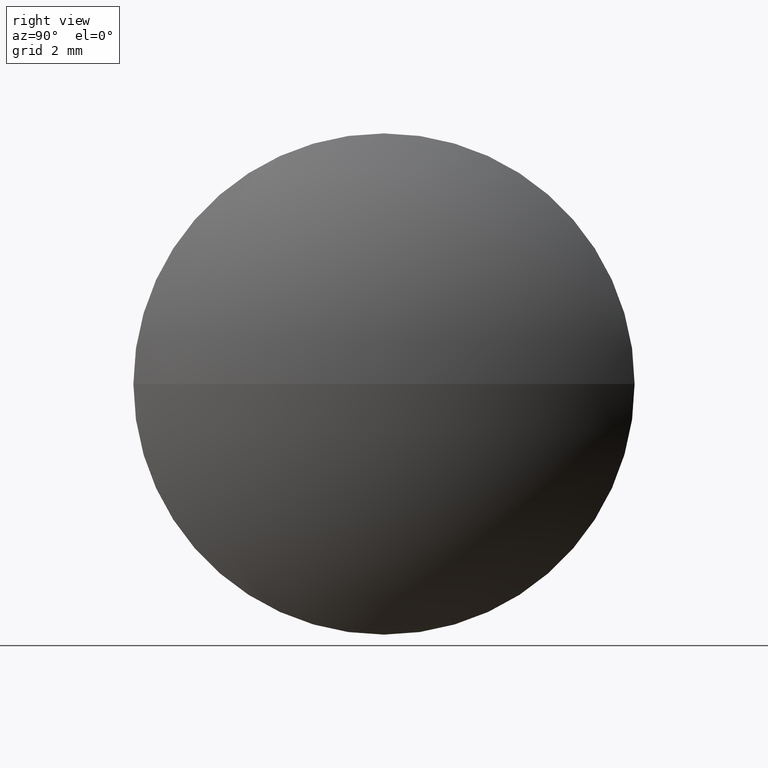
[diagram: clean part render]
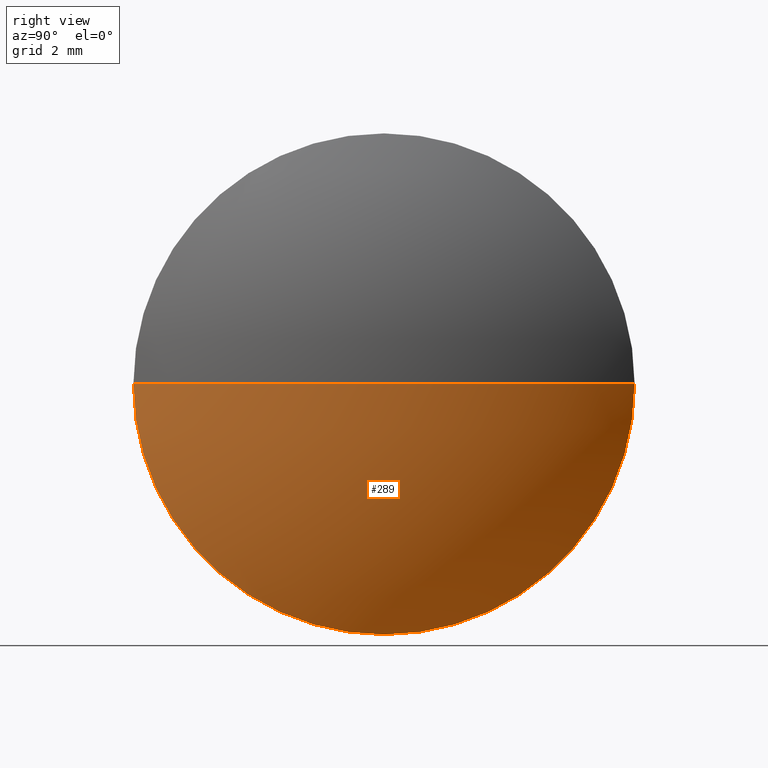
[diagram: same view with one face highlighted and labeled with its STEP entity id]
A machine part, right view. The second image highlights one B-rep face of the part: STEP entity #289.
In plain terms, the highlighted spherical surface has radius 12.9187 mm.
Its self-contained STEP definition (entity closure, byte-faithful):
#20 = EDGE_CURVE ( 'NONE', #120, #103, #58, .T. ) ;
#31 = CARTESIAN_POINT ( 'NONE',  ( 51.35798844960340400, 28.71030296644745400, 0.0000000000000000000 ) ) ;
#35 = CARTESIAN_POINT ( 'NONE',  ( 40.83923844960349900, 28.71030296644745400, 0.0000000000000000000 ) ) ;
#42 = CARTESIAN_POINT ( 'NONE',  ( 40.83923844960349900, 28.71030296644745400, 0.0000000000000000000 ) ) ;
#54 = CIRCLE ( 'NONE', #72, 12.91874999999988200 ) ;
#58 = CIRCLE ( 'NONE', #149, 12.91874999999988600 ) ;
#72 = AXIS2_PLACEMENT_3D ( 'NONE', #35, #155, #284 ) ;
#82 = EDGE_CURVE ( 'NONE', #120, #300, #54, .T. ) ;
#103 = VERTEX_POINT ( 'NONE', #124 ) ;
#107 = EDGE_CURVE ( 'NONE', #300, #183, #197, .T. ) ;
#118 = CARTESIAN_POINT ( 'NONE',  ( 40.83923844960349900, 28.71030296644745400, 0.0000000000000000000 ) ) ;
#120 = VERTEX_POINT ( 'NONE', #327 ) ;
#121 = DIRECTION ( 'NONE',  ( 0.0000000000000000000, 1.224646799147353200E-016, -1.000000000000000000 ) ) ;
#122 = DIRECTION ( 'NONE',  ( 0.0000000000000000000, 1.000000000000000000, 1.224646799147352700E-016 ) ) ;
#124 = CARTESIAN_POINT ( 'NONE',  ( 51.35798844960340400, 21.21030296644752200, -9.184850993605063100E-016 ) ) ;
#126 = DIRECTION ( 'NONE',  ( -1.000000000000000000, -0.0000000000000000000, -0.0000000000000000000 ) ) ;
#135 = AXIS2_PLACEMENT_3D ( 'NONE', #224, #126, #278 ) ;
#147 = ORIENTED_EDGE ( 'NONE', *, *, #107, .F. ) ;
#149 = AXIS2_PLACEMENT_3D ( 'NONE', #118, #121, #122 ) ;
#155 = DIRECTION ( 'NONE',  ( -0.0000000000000000000, 0.0000000000000000000, 1.000000000000000000 ) ) ;
#161 = DIRECTION ( 'NONE',  ( -0.0000000000000000000, 0.0000000000000000000, -1.000000000000000000 ) ) ;
#175 = CARTESIAN_POINT ( 'NONE',  ( 51.35798844960340400, 28.71030296644745400, -7.499999999999927200 ) ) ;
#183 = VERTEX_POINT ( 'NONE', #175 ) ;
#186 = EDGE_CURVE ( 'NONE', #183, #103, #260, .T. ) ;
#197 = CIRCLE ( 'NONE', #135, 7.499999999999927200 ) ;
#217 = EDGE_LOOP ( 'NONE', ( #326, #221, #269, #147 ) ) ;
#221 = ORIENTED_EDGE ( 'NONE', *, *, #20, .T. ) ;
#224 = CARTESIAN_POINT ( 'NONE',  ( 51.35798844960340400, 28.71030296644745400, 0.0000000000000000000 ) ) ;
#228 = DIRECTION ( 'NONE',  ( 0.0000000000000000000, 1.000000000000000000, 0.0000000000000000000 ) ) ;
#243 = AXIS2_PLACEMENT_3D ( 'NONE', #42, #161, #228 ) ;
#251 = DIRECTION ( 'NONE',  ( 0.0000000000000000000, 0.0000000000000000000, 1.000000000000000000 ) ) ;
#252 = FACE_OUTER_BOUND ( 'NONE', #217, .T. ) ;
#260 = CIRCLE ( 'NONE', #282, 7.499999999999927200 ) ;
#269 = ORIENTED_EDGE ( 'NONE', *, *, #186, .F. ) ;
#278 = DIRECTION ( 'NONE',  ( 0.0000000000000000000, 0.0000000000000000000, 1.000000000000000000 ) ) ;
#282 = AXIS2_PLACEMENT_3D ( 'NONE', #31, #328, #251 ) ;
#284 = DIRECTION ( 'NONE',  ( 1.000000000000000000, 0.0000000000000000000, 0.0000000000000000000 ) ) ;
#289 = ADVANCED_FACE ( 'NONE', ( #252 ), #320, .T. ) ;
#300 = VERTEX_POINT ( 'NONE', #338 ) ;
#320 = SPHERICAL_SURFACE ( 'NONE', #243, 12.91874999999988200 ) ;
#326 = ORIENTED_EDGE ( 'NONE', *, *, #82, .F. ) ;
#327 = CARTESIAN_POINT ( 'NONE',  ( 53.75798844960338100, 28.71030296644745400, 0.0000000000000000000 ) ) ;
#328 = DIRECTION ( 'NONE',  ( -1.000000000000000000, -0.0000000000000000000, -0.0000000000000000000 ) ) ;
#338 = CARTESIAN_POINT ( 'NONE',  ( 51.35798844960340400, 36.21030296644737900, 0.0000000000000000000 ) ) ;